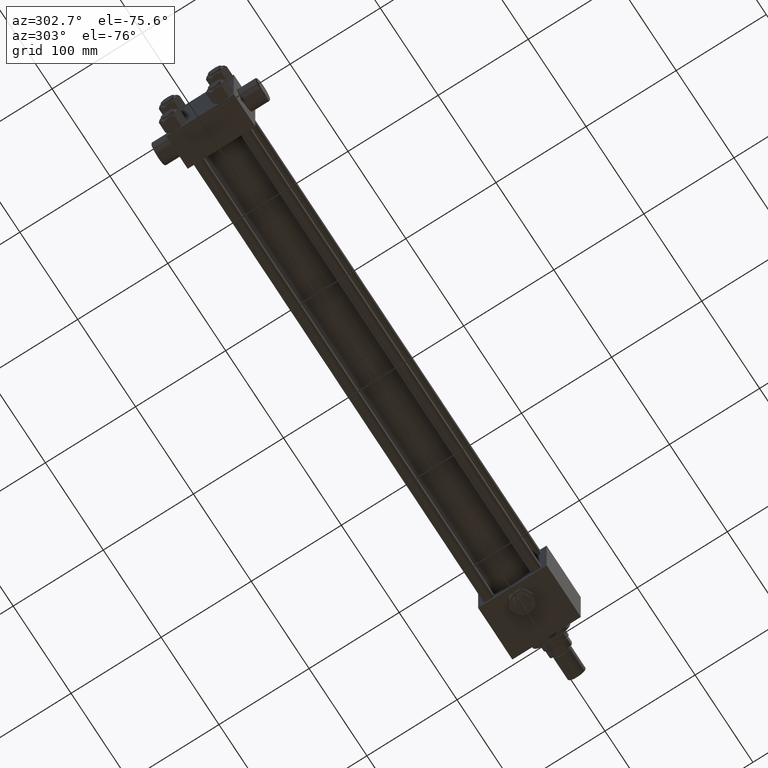
[diagram: clean part render]
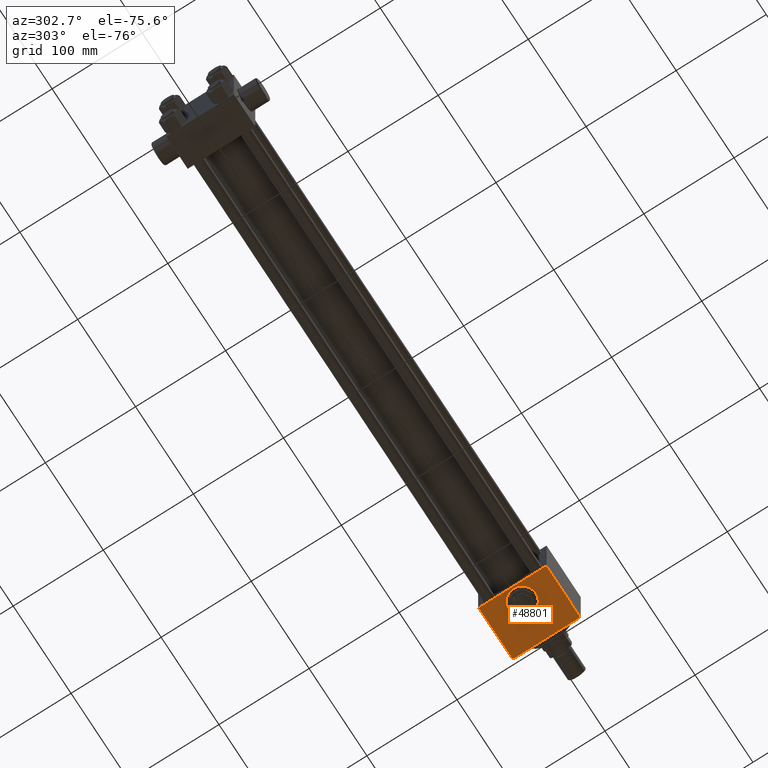
[diagram: same view with one face highlighted and labeled with its STEP entity id]
A machine part, auxiliary view. The second image highlights one B-rep face of the part: STEP entity #48801.
In plain terms, the highlighted planar face has unit normal (0, -0, -1).
Its self-contained STEP definition (entity closure, byte-faithful):
#1111 = AXIS2_PLACEMENT_3D ( 'NONE', #15492, #30589, #3846 ) ;
#1181 = CARTESIAN_POINT ( 'NONE',  ( 599.0000000000000000, 37.50000000000000000, -37.50000000000000711 ) ) ;
#1597 = CARTESIAN_POINT ( 'NONE',  ( 540.0000000000000000, 37.50000000000000000, -37.50000000000000711 ) ) ;
#2819 = LINE ( 'NONE', #9521, #34822 ) ;
#3846 = DIRECTION ( 'NONE',  ( -1.000000000000000000, 0.000000000000000000, 0.000000000000000000 ) ) ;
#4106 = VERTEX_POINT ( 'NONE', #41307 ) ;
#4297 = CIRCLE ( 'NONE', #10642, 15.00000000000001421 ) ;
#4413 = CARTESIAN_POINT ( 'NONE',  ( 572.0000000000001137, -1.586826135443716408E-15, -37.50000000000000711 ) ) ;
#4532 = FACE_BOUND ( 'NONE', #23657, .T. ) ;
#8502 = CARTESIAN_POINT ( 'NONE',  ( 599.0000000000000000, 38.00000000000000000, -37.50000000000000711 ) ) ;
#8995 = VERTEX_POINT ( 'NONE', #1181 ) ;
#9521 = CARTESIAN_POINT ( 'NONE',  ( 540.0000000000000000, -37.49999999999990052, -37.50000000000000000 ) ) ;
#9990 = CARTESIAN_POINT ( 'NONE',  ( 599.0000000000000000, 38.00000000000000000, -37.50000000000000711 ) ) ;
#10642 = AXIS2_PLACEMENT_3D ( 'NONE', #19340, #46341, #27263 ) ;
#11828 = EDGE_CURVE ( 'NONE', #27825, #8995, #17096, .T. ) ;
#12154 = LINE ( 'NONE', #27504, #34351 ) ;
#12221 = DIRECTION ( 'NONE',  ( 0.000000000000000000, -9.130123557772668334E-17, -1.000000000000000000 ) ) ;
#15492 = CARTESIAN_POINT ( 'NONE',  ( 557.0000000000000000, -3.423796334164750927E-15, -37.50000000000000711 ) ) ;
#15825 = VERTEX_POINT ( 'NONE', #34262 ) ;
#16174 = PLANE ( 'NONE',  #16952 ) ;
#16952 = AXIS2_PLACEMENT_3D ( 'NONE', #8502, #12221, #26354 ) ;
#17096 = LINE ( 'NONE', #27760, #35456 ) ;
#17139 = EDGE_CURVE ( 'NONE', #4106, #37977, #2819, .T. ) ;
#17446 = DIRECTION ( 'NONE',  ( -1.000000000000000000, 0.000000000000000000, 0.000000000000000000 ) ) ;
#19233 = ORIENTED_EDGE ( 'NONE', *, *, #47679, .F. ) ;
#19340 = CARTESIAN_POINT ( 'NONE',  ( 557.0000000000000000, -3.423796334164750927E-15, -37.50000000000000711 ) ) ;
#22193 = EDGE_CURVE ( 'NONE', #8995, #4106, #43918, .T. ) ;
#23657 = EDGE_LOOP ( 'NONE', ( #47047, #40961 ) ) ;
#24284 = EDGE_LOOP ( 'NONE', ( #42102, #32137, #19233, #46682 ) ) ;
#26354 = DIRECTION ( 'NONE',  ( 0.000000000000000000, 1.000000000000000000, -9.130123557772668334E-17 ) ) ;
#27019 = DIRECTION ( 'NONE',  ( 0.000000000000000000, -1.000000000000000000, 9.130123557772667102E-17 ) ) ;
#27263 = DIRECTION ( 'NONE',  ( -1.000000000000000000, 0.000000000000000000, 0.000000000000000000 ) ) ;
#27504 = CARTESIAN_POINT ( 'NONE',  ( 540.0000000000000000, 38.00000000000000000, -37.50000000000000711 ) ) ;
#27760 = CARTESIAN_POINT ( 'NONE',  ( 599.0000000000000000, 37.50000000000000000, -37.50000000000000711 ) ) ;
#27825 = VERTEX_POINT ( 'NONE', #1597 ) ;
#28318 = DIRECTION ( 'NONE',  ( 0.000000000000000000, -1.000000000000000000, 9.130123557772667102E-17 ) ) ;
#30589 = DIRECTION ( 'NONE',  ( 0.000000000000000000, 0.000000000000000000, -1.000000000000000000 ) ) ;
#32137 = ORIENTED_EDGE ( 'NONE', *, *, #17139, .T. ) ;
#34262 = CARTESIAN_POINT ( 'NONE',  ( 542.0000000000000000, -3.423796334164750927E-15, -37.50000000000000711 ) ) ;
#34351 = VECTOR ( 'NONE', #27019, 1000.000000000000000 ) ;
#34822 = VECTOR ( 'NONE', #17446, 1000.000000000000000 ) ;
#35418 = DIRECTION ( 'NONE',  ( 1.000000000000000000, 0.000000000000000000, 0.000000000000000000 ) ) ;
#35456 = VECTOR ( 'NONE', #35418, 1000.000000000000000 ) ;
#37977 = VERTEX_POINT ( 'NONE', #48477 ) ;
#40961 = ORIENTED_EDGE ( 'NONE', *, *, #47690, .F. ) ;
#41307 = CARTESIAN_POINT ( 'NONE',  ( 599.0000000000000000, -37.49999999999990052, -37.50000000000000000 ) ) ;
#41993 = VECTOR ( 'NONE', #28318, 1000.000000000000000 ) ;
#42102 = ORIENTED_EDGE ( 'NONE', *, *, #22193, .T. ) ;
#43918 = LINE ( 'NONE', #9990, #41993 ) ;
#44380 = VERTEX_POINT ( 'NONE', #4413 ) ;
#45435 = CIRCLE ( 'NONE', #1111, 15.00000000000001421 ) ;
#45925 = FACE_OUTER_BOUND ( 'NONE', #24284, .T. ) ;
#46341 = DIRECTION ( 'NONE',  ( 0.000000000000000000, 0.000000000000000000, -1.000000000000000000 ) ) ;
#46682 = ORIENTED_EDGE ( 'NONE', *, *, #11828, .T. ) ;
#47047 = ORIENTED_EDGE ( 'NONE', *, *, #47508, .F. ) ;
#47508 = EDGE_CURVE ( 'NONE', #15825, #44380, #45435, .T. ) ;
#47679 = EDGE_CURVE ( 'NONE', #27825, #37977, #12154, .T. ) ;
#47690 = EDGE_CURVE ( 'NONE', #44380, #15825, #4297, .T. ) ;
#48477 = CARTESIAN_POINT ( 'NONE',  ( 540.0000000000000000, -37.49999999999990052, -37.50000000000000000 ) ) ;
#48801 = ADVANCED_FACE ( 'NONE', ( #4532, #45925 ), #16174, .T. ) ;